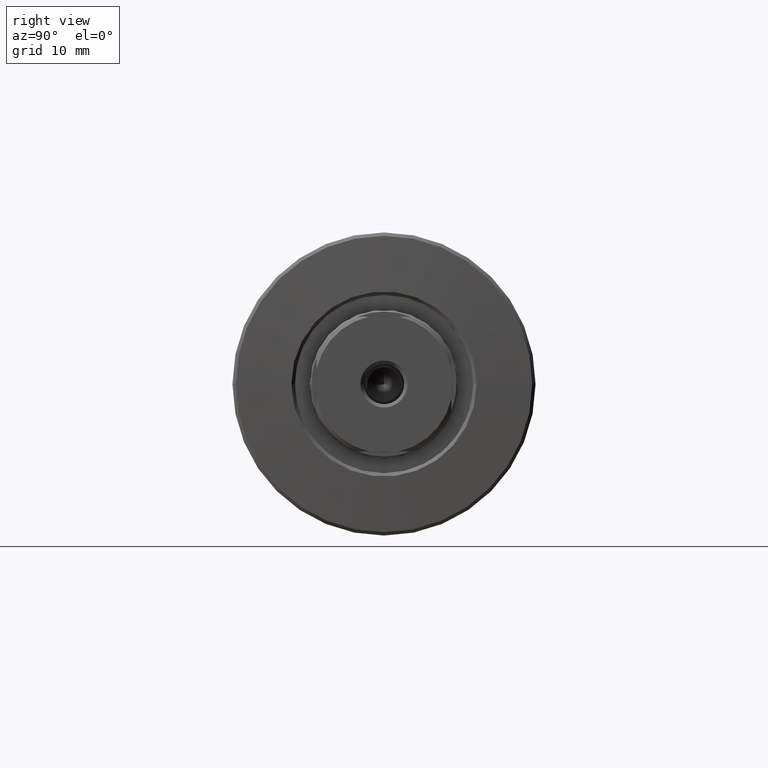
[diagram: clean part render]
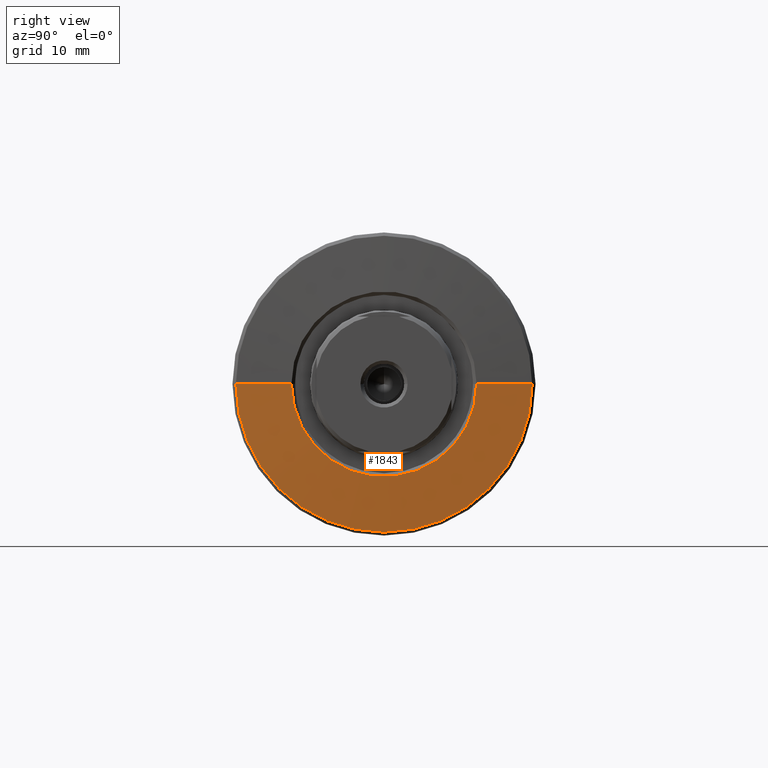
[diagram: same view with one face highlighted and labeled with its STEP entity id]
A machine part, right view. The second image highlights one B-rep face of the part: STEP entity #1843.
In plain terms, the highlighted conical surface has half-angle 87.138 deg.
Its self-contained STEP definition (entity closure, byte-faithful):
#55 = FACE_OUTER_BOUND ( 'NONE', #948, .T. ) ;
#94 = ORIENTED_EDGE ( 'NONE', *, *, #677, .T. ) ;
#241 = ORIENTED_EDGE ( 'NONE', *, *, #1233, .F. ) ;
#328 = DIRECTION ( 'NONE',  ( -3.035766082959404132E-15, 1.000000000000000000, 0.000000000000000000 ) ) ;
#377 = VERTEX_POINT ( 'NONE', #1170 ) ;
#393 = VECTOR ( 'NONE', #1277, 1000.000000000000000 ) ;
#436 = DIRECTION ( 'NONE',  ( 3.035766082959404132E-15, -1.000000000000000000, 0.000000000000000000 ) ) ;
#471 = DIRECTION ( 'NONE',  ( -0.04993761694392248596, -0.9987523388778432043, 0.000000000000000000 ) ) ;
#548 = EDGE_CURVE ( 'NONE', #1156, #377, #663, .T. ) ;
#581 = CARTESIAN_POINT ( 'NONE',  ( -0.6874688084723999948, 8.994929653312370924E-14, 0.000000000000000000 ) ) ;
#650 = CONICAL_SURFACE ( 'NONE', #923, 22.00000000000006040, 1.520837931072920535 ) ;
#663 = LINE ( 'NONE', #2132, #1678 ) ;
#676 = CIRCLE ( 'NONE', #847, 22.00000000000006040 ) ;
#677 = EDGE_CURVE ( 'NONE', #1609, #1156, #1913, .T. ) ;
#705 = DIRECTION ( 'NONE',  ( 1.000000000000000000, 3.039592211588219332E-15, -0.000000000000000000 ) ) ;
#784 = DIRECTION ( 'NONE',  ( -3.035903820383676297E-15, 1.000000000000000000, 0.000000000000000000 ) ) ;
#847 = AXIS2_PLACEMENT_3D ( 'NONE', #1457, #705, #328 ) ;
#849 = CARTESIAN_POINT ( 'NONE',  ( -1.100000000000799227, 22.00000000000015277, 2.724839128102870063E-15 ) ) ;
#923 = AXIS2_PLACEMENT_3D ( 'NONE', #972, #1314, #436 ) ;
#948 = EDGE_LOOP ( 'NONE', ( #241, #94, #2277, #2091 ) ) ;
#972 = CARTESIAN_POINT ( 'NONE',  ( -1.100000000000732392, 8.869536993631697946E-14, 0.000000000000000000 ) ) ;
#1089 = LINE ( 'NONE', #2169, #393 ) ;
#1156 = VERTEX_POINT ( 'NONE', #2110 ) ;
#1170 = CARTESIAN_POINT ( 'NONE',  ( -1.100000000000665556, -21.99999999999997158, 0.000000000000000000 ) ) ;
#1233 = EDGE_CURVE ( 'NONE', #1609, #1531, #1089, .T. ) ;
#1277 = DIRECTION ( 'NONE',  ( -0.04993761694392855749, 0.9987523388778428712, 1.223118854947682994E-16 ) ) ;
#1314 = DIRECTION ( 'NONE',  ( -1.000000000000000000, -3.039592211588219332E-15, 0.000000000000000000 ) ) ;
#1344 = DIRECTION ( 'NONE',  ( -1.000000000000000000, -3.039592211588226037E-15, 0.000000000000000000 ) ) ;
#1457 = CARTESIAN_POINT ( 'NONE',  ( -1.100000000000732392, 8.869536993631697946E-14, 0.000000000000000000 ) ) ;
#1531 = VERTEX_POINT ( 'NONE', #849 ) ;
#1609 = VERTEX_POINT ( 'NONE', #2382 ) ;
#1615 = EDGE_CURVE ( 'NONE', #377, #1531, #676, .T. ) ;
#1678 = VECTOR ( 'NONE', #471, 1000.000000000000114 ) ;
#1843 = ADVANCED_FACE ( 'NONE', ( #55 ), #650, .T. ) ;
#1913 = CIRCLE ( 'NONE', #2306, 13.74937616943892849 ) ;
#2091 = ORIENTED_EDGE ( 'NONE', *, *, #1615, .T. ) ;
#2110 = CARTESIAN_POINT ( 'NONE',  ( -0.6874688084723582504, -13.74937616943883789, 0.000000000000000000 ) ) ;
#2132 = CARTESIAN_POINT ( 'NONE',  ( -1.100000000000665556, -21.99999999999997158, 0.000000000000000000 ) ) ;
#2169 = CARTESIAN_POINT ( 'NONE',  ( -1.100000000000799227, 22.00000000000015277, 2.694222958124184698E-15 ) ) ;
#2277 = ORIENTED_EDGE ( 'NONE', *, *, #548, .T. ) ;
#2306 = AXIS2_PLACEMENT_3D ( 'NONE', #581, #1344, #784 ) ;
#2382 = CARTESIAN_POINT ( 'NONE',  ( -0.6874688084724417392, 13.74937616943901908, 2.189017954870906259E-15 ) ) ;